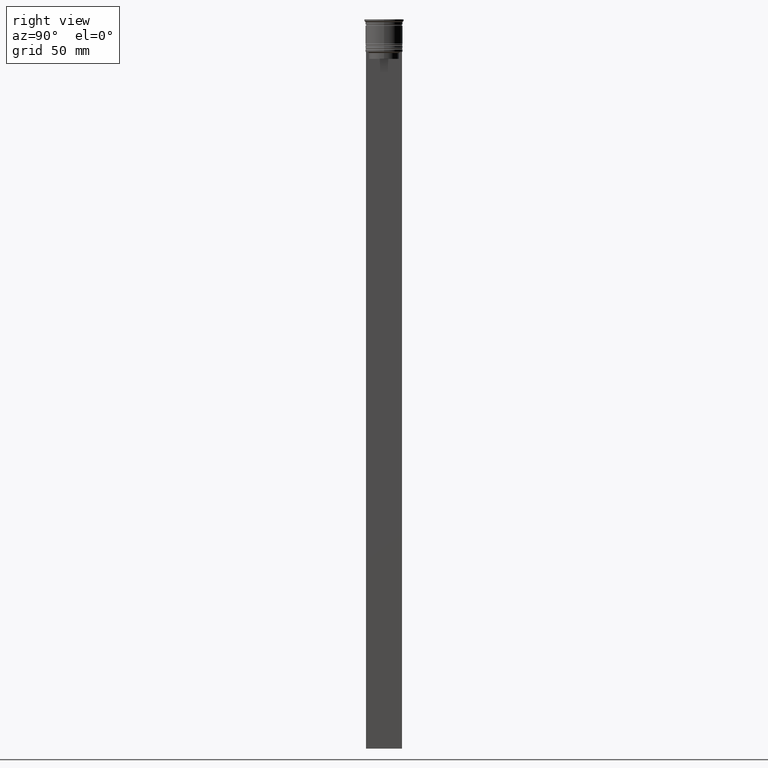
[diagram: clean part render]
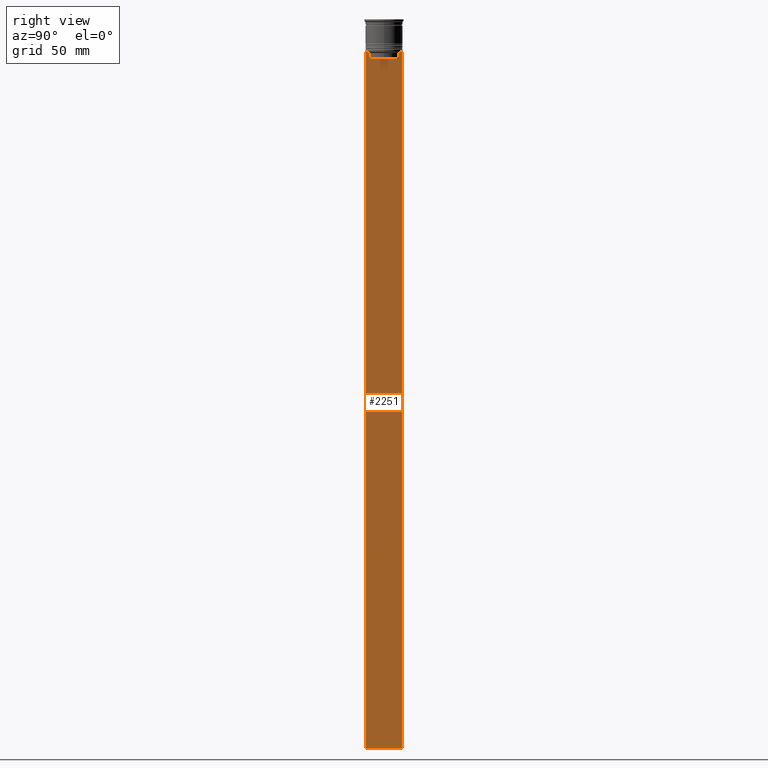
[diagram: same view with one face highlighted and labeled with its STEP entity id]
A machine part, right view. The second image highlights one B-rep face of the part: STEP entity #2251.
In plain terms, the highlighted planar face has unit normal (-1, 0, 0).
Its self-contained STEP definition (entity closure, byte-faithful):
#21 = B_SPLINE_CURVE_WITH_KNOTS ( 'NONE', 3,
 ( #611, #1041, #86, #1730 ),
 .UNSPECIFIED., .F., .F.,
 ( 4, 4 ),
 ( 0.02996184199614751464, 0.03067452609193705923 ),
 .UNSPECIFIED. ) ;
#30 = CARTESIAN_POINT ( 'NONE',  ( 0.5000000000000001110, -7.749999999999999112, 1.532224567009066840 ) ) ;
#31 = LINE ( 'NONE', #52, #1885 ) ;
#34 = ORIENTED_EDGE ( 'NONE', *, *, #963, .T. ) ;
#40 = LINE ( 'NONE', #30, #2376 ) ;
#52 = CARTESIAN_POINT ( 'NONE',  ( 0.5000000000000001110, -6.380438856379708312, 0.000000000000000000 ) ) ;
#53 = CARTESIAN_POINT ( 'NONE',  ( 0.5000000000000001110, -7.749999999999999112, -14.00000000000000178 ) ) ;
#86 = CARTESIAN_POINT ( 'NONE',  ( 0.5000000000000001110, -6.714736947305993908, -14.16668390685738821 ) ) ;
#152 = EDGE_CURVE ( 'NONE', #1073, #2273, #1433, .T. ) ;
#161 = VECTOR ( 'NONE', #1603, 1000.000000000000000 ) ;
#223 = LINE ( 'NONE', #53, #1973 ) ;
#274 = CARTESIAN_POINT ( 'NONE',  ( 0.5000000000000001110, 7.750000000000002665, -314.0000000000000000 ) ) ;
#333 = ORIENTED_EDGE ( 'NONE', *, *, #359, .T. ) ;
#359 = EDGE_CURVE ( 'NONE', #2273, #1216, #1911, .T. ) ;
#380 = VECTOR ( 'NONE', #498, 1000.000000000000000 ) ;
#382 = DIRECTION ( 'NONE',  ( 0.000000000000000000, 0.000000000000000000, -1.000000000000000000 ) ) ;
#426 = DIRECTION ( 'NONE',  ( -0.000000000000000000, -0.000000000000000000, 1.000000000000000000 ) ) ;
#430 = VERTEX_POINT ( 'NONE', #954 ) ;
#465 = EDGE_CURVE ( 'NONE', #1436, #858, #223, .T. ) ;
#473 = DIRECTION ( 'NONE',  ( 0.000000000000000000, 0.000000000000000000, 1.000000000000000000 ) ) ;
#498 = DIRECTION ( 'NONE',  ( 0.000000000000000000, 1.000000000000000000, 0.000000000000000000 ) ) ;
#573 = CARTESIAN_POINT ( 'NONE',  ( 0.5000000000000001110, 6.714736947114692711, -14.16668390704818847 ) ) ;
#579 = EDGE_CURVE ( 'NONE', #430, #984, #1225, .T. ) ;
#601 = EDGE_LOOP ( 'NONE', ( #632, #2004, #623, #333, #1795, #34, #890, #1904, #1596, #2123 ) ) ;
#611 = CARTESIAN_POINT ( 'NONE',  ( 0.5000000000000001110, -6.380438856379708312, -14.50000000000000000 ) ) ;
#623 = ORIENTED_EDGE ( 'NONE', *, *, #152, .T. ) ;
#632 = ORIENTED_EDGE ( 'NONE', *, *, #579, .T. ) ;
#679 = CARTESIAN_POINT ( 'NONE',  ( 0.5000000000000001110, -7.749999999999999112, -14.00000000000000178 ) ) ;
#680 = CARTESIAN_POINT ( 'NONE',  ( 0.5000000000000001110, -7.749999999999999112, -314.0000000000000000 ) ) ;
#732 = VECTOR ( 'NONE', #1633, 1000.000000000000000 ) ;
#746 = CARTESIAN_POINT ( 'NONE',  ( 0.5000000000000001110, -7.749999999999999112, -14.00000000000000178 ) ) ;
#802 = CARTESIAN_POINT ( 'NONE',  ( 0.5000000000000001110, 6.380438856379708312, -14.50000000000000000 ) ) ;
#822 = CARTESIAN_POINT ( 'NONE',  ( 0.5000000000000001110, 6.881860213634098500, -14.00000000000000178 ) ) ;
#858 = VERTEX_POINT ( 'NONE', #746 ) ;
#868 = VECTOR ( 'NONE', #382, 1000.000000000000000 ) ;
#887 = LINE ( 'NONE', #1853, #868 ) ;
#890 = ORIENTED_EDGE ( 'NONE', *, *, #465, .T. ) ;
#952 = CARTESIAN_POINT ( 'NONE',  ( 0.5000000000000001110, 6.881860213634098500, -14.00000000000000178 ) ) ;
#954 = CARTESIAN_POINT ( 'NONE',  ( 0.5000000000000001110, 7.750000000000002665, -14.00000000000000178 ) ) ;
#963 = EDGE_CURVE ( 'NONE', #2131, #1436, #21, .T. ) ;
#984 = VERTEX_POINT ( 'NONE', #822 ) ;
#1041 = CARTESIAN_POINT ( 'NONE',  ( 0.5000000000000001110, -6.547597841511247019, -14.33335192438652150 ) ) ;
#1067 = EDGE_CURVE ( 'NONE', #2091, #1849, #1489, .T. ) ;
#1073 = VERTEX_POINT ( 'NONE', #1683 ) ;
#1166 = DIRECTION ( 'NONE',  ( 0.000000000000000000, -1.000000000000000000, 0.000000000000000000 ) ) ;
#1171 = CARTESIAN_POINT ( 'NONE',  ( 0.5000000000000001110, 6.399999999999999467, -17.00000000000000000 ) ) ;
#1212 = B_SPLINE_CURVE_WITH_KNOTS ( 'NONE', 3,
 ( #952, #573, #1345, #802 ),
 .UNSPECIFIED., .F., .F.,
 ( 4, 4 ),
 ( 0.01172465562756038263, 0.01243276816391822651 ),
 .UNSPECIFIED. ) ;
#1216 = VERTEX_POINT ( 'NONE', #1366 ) ;
#1225 = LINE ( 'NONE', #679, #161 ) ;
#1326 = CARTESIAN_POINT ( 'NONE',  ( 0.5000000000000001110, -6.380438856379708312, -14.50000000000000000 ) ) ;
#1345 = CARTESIAN_POINT ( 'NONE',  ( 0.5000000000000001110, 6.547597841304911626, -14.33335192459222718 ) ) ;
#1351 = DIRECTION ( 'NONE',  ( 0.000000000000000000, -1.000000000000000000, 0.000000000000000000 ) ) ;
#1366 = CARTESIAN_POINT ( 'NONE',  ( 0.5000000000000001110, -6.380438856379708312, -17.00000000000000000 ) ) ;
#1386 = DIRECTION ( 'NONE',  ( -1.000000000000000000, 0.000000000000000000, 0.000000000000000000 ) ) ;
#1433 = LINE ( 'NONE', #2175, #732 ) ;
#1436 = VERTEX_POINT ( 'NONE', #1616 ) ;
#1489 = LINE ( 'NONE', #680, #380 ) ;
#1557 = EDGE_CURVE ( 'NONE', #430, #1849, #887, .T. ) ;
#1596 = ORIENTED_EDGE ( 'NONE', *, *, #1067, .T. ) ;
#1603 = DIRECTION ( 'NONE',  ( 0.000000000000000000, -1.000000000000000000, 0.000000000000000000 ) ) ;
#1616 = CARTESIAN_POINT ( 'NONE',  ( 0.5000000000000001110, -6.881860213634098500, -14.00000000000000178 ) ) ;
#1633 = DIRECTION ( 'NONE',  ( 0.000000000000000000, 0.000000000000000000, -1.000000000000000000 ) ) ;
#1655 = EDGE_CURVE ( 'NONE', #984, #1073, #1212, .T. ) ;
#1677 = EDGE_CURVE ( 'NONE', #858, #2091, #40, .T. ) ;
#1683 = CARTESIAN_POINT ( 'NONE',  ( 0.5000000000000001110, 6.380438856379708312, -14.50000000000000000 ) ) ;
#1706 = DIRECTION ( 'NONE',  ( 0.000000000000000000, 0.000000000000000000, -1.000000000000000000 ) ) ;
#1730 = CARTESIAN_POINT ( 'NONE',  ( 0.5000000000000001110, -6.881860213634098500, -14.00000000000000178 ) ) ;
#1731 = AXIS2_PLACEMENT_3D ( 'NONE', #1976, #1386, #473 ) ;
#1795 = ORIENTED_EDGE ( 'NONE', *, *, #2067, .T. ) ;
#1849 = VERTEX_POINT ( 'NONE', #274 ) ;
#1853 = CARTESIAN_POINT ( 'NONE',  ( 0.5000000000000001110, 7.750000000000002665, 1.532224567009066840 ) ) ;
#1874 = CARTESIAN_POINT ( 'NONE',  ( 0.5000000000000001110, -7.749999999999999112, -314.0000000000000000 ) ) ;
#1885 = VECTOR ( 'NONE', #426, 1000.000000000000000 ) ;
#1904 = ORIENTED_EDGE ( 'NONE', *, *, #1677, .T. ) ;
#1911 = LINE ( 'NONE', #1171, #2293 ) ;
#1952 = CARTESIAN_POINT ( 'NONE',  ( 0.5000000000000001110, 6.380438856379708312, -17.00000000000000000 ) ) ;
#1973 = VECTOR ( 'NONE', #1166, 1000.000000000000000 ) ;
#1976 = CARTESIAN_POINT ( 'NONE',  ( 0.5000000000000001110, -7.749999999999999112, 1.532224567009066840 ) ) ;
#2004 = ORIENTED_EDGE ( 'NONE', *, *, #1655, .T. ) ;
#2067 = EDGE_CURVE ( 'NONE', #1216, #2131, #31, .T. ) ;
#2091 = VERTEX_POINT ( 'NONE', #1874 ) ;
#2101 = PLANE ( 'NONE',  #1731 ) ;
#2115 = FACE_OUTER_BOUND ( 'NONE', #601, .T. ) ;
#2123 = ORIENTED_EDGE ( 'NONE', *, *, #1557, .F. ) ;
#2131 = VERTEX_POINT ( 'NONE', #1326 ) ;
#2175 = CARTESIAN_POINT ( 'NONE',  ( 0.5000000000000001110, 6.380438856379708312, 0.000000000000000000 ) ) ;
#2251 = ADVANCED_FACE ( 'NONE', ( #2115 ), #2101, .F. ) ;
#2273 = VERTEX_POINT ( 'NONE', #1952 ) ;
#2293 = VECTOR ( 'NONE', #1351, 1000.000000000000000 ) ;
#2376 = VECTOR ( 'NONE', #1706, 1000.000000000000000 ) ;